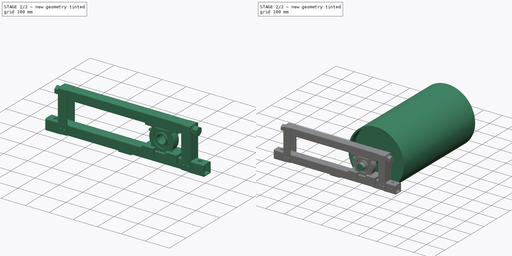
[diagram: build sequence overview — one tinted view per stage of 2, left to right]
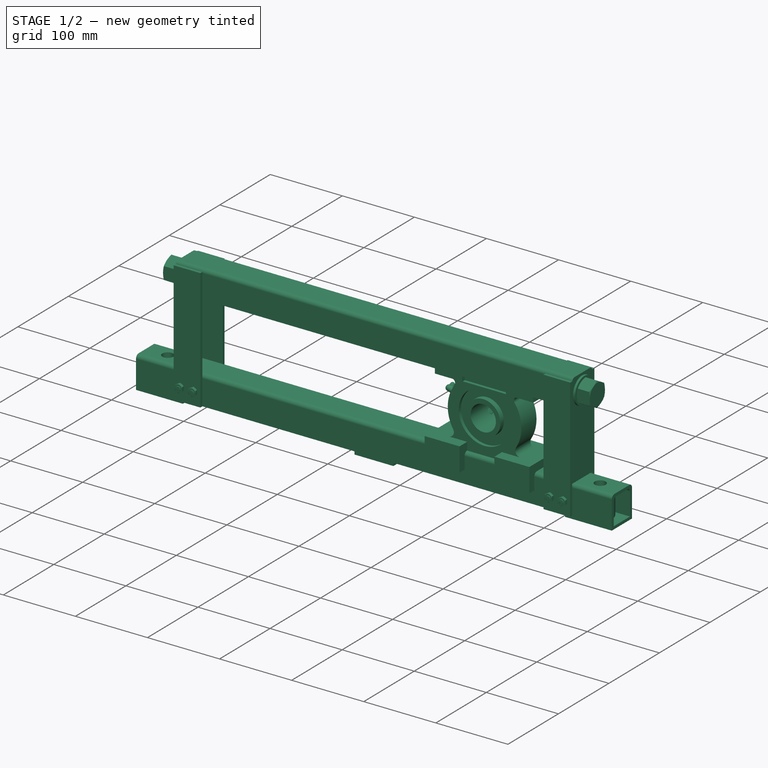
[diagram: stage 1 of 2 — iso view after this stage's code; geometry added in this stage tinted green]
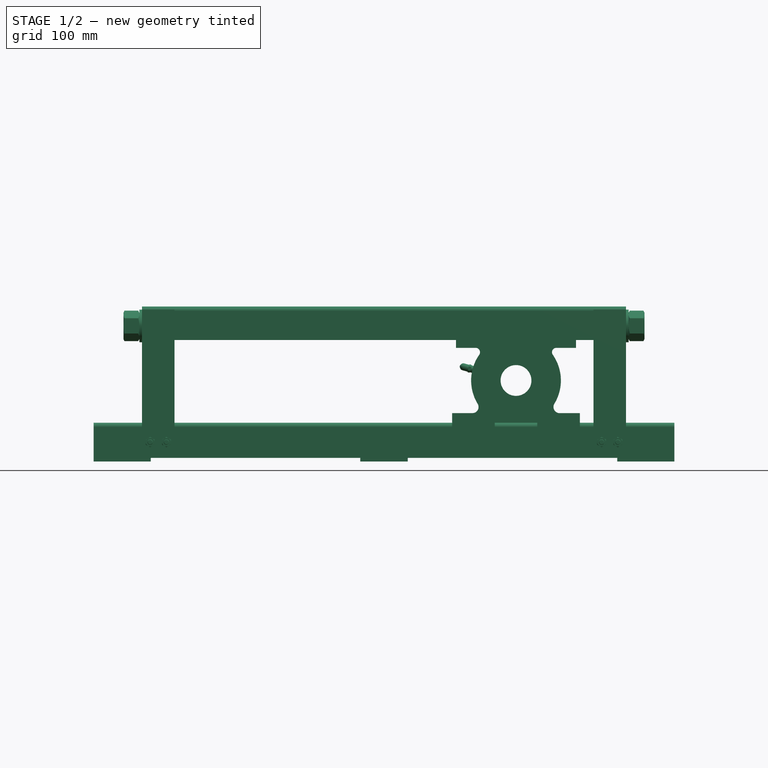
[diagram: stage 1 of 2 — front view after this stage's code; geometry added in this stage tinted green]
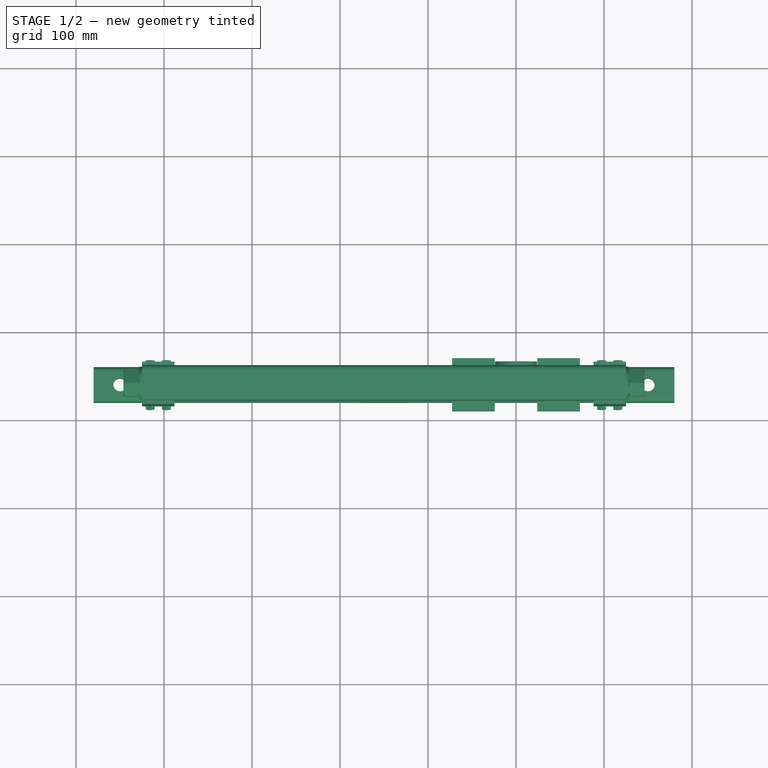
[diagram: stage 1 of 2 — top view after this stage's code; geometry added in this stage tinted green]
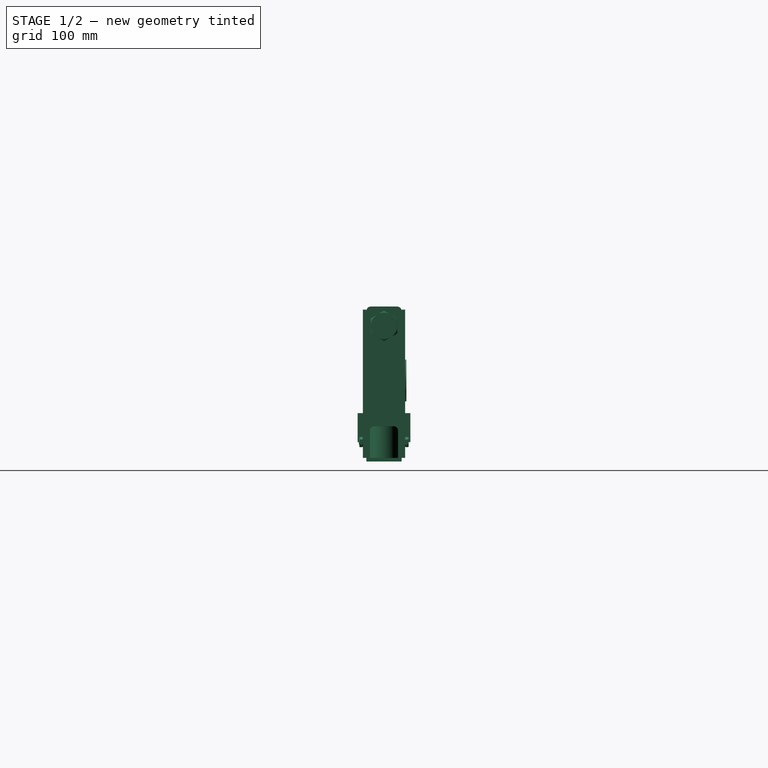
[diagram: stage 1 of 2 — right view after this stage's code; geometry added in this stage tinted green]
FCSTD DOCUMENT  (FreeCAD 1.0R39319 (Git))
Label: Take-Up_25Assy
License: All rights reserved
LicenseURL: https://en.wikipedia.org/wiki/All_rights_reserved
objects: Part::Feature×3, App::Part×3, Sketcher::SketchObject×1, Spreadsheet::Sheet×1, Part::FeaturePython×1, Part::Mirroring×1
note: 7 computed .brp shape members not serialized (recipe doc carries the construction recipe); baked Part::Feature solids carry a one-line shape summary decoded from their .brp

FEATURE [Part::Feature] Part__Feature  label="UCT207-Nipple"
  Placement = pos=(398.691,105.2,-1.6e-14) rot=(0.519988,-0.677661,0.519988;1.95044rad)
  shape: bbox 18.99 x 12.27 x 15.73 mm, 44 faces (baked)
FEATURE [Part::Feature] Part__Feature001  label="UCT207-Housing2"
  Placement = pos=(450,92,0) rot=(0,0,1;0rad)
  shape: bbox 145.2 x 150 x 60 mm, 86 faces (baked)
FEATURE [Part::Feature] Part__Feature002  label="UCTL207-300-Frame"
  Placement = pos=(300,92,0) rot=(0,0,1;0rad)
  shape: bbox 660 x 176 x 56.5 mm, 312 faces (baked)
FEATURE [App::Part] UCTL207J_300_0  label="UCTL207J-300-0"
  Group = -> [Part__Feature,Part__Feature001,Part__Feature002]
  Origin = -> Origin
FEATURE [App::Part] _______________________________35_v1  label="Take-Up_35"
  Group = -> [UCTL207J_300_0]
  Origin = -> Origin001
  Placement = pos=(-450,360,-92) rot=(1,0,0;1.5708rad)
  expr: .Placement.Base.y = Spreadsheet.Y
FEATURE [Part::Mirroring] Mirror  label="Take-Up_35 (mirrored)"
  Base = (-500,0,0)
  Normal = (0,-1,0)
  Source = -> _______________________________35_v1
FEATURE [App::Part] Part  label="takeUpAssy25"
  Group = -> [Sketch,Spreadsheet,Take_upPulley,_______________________________35_v1,Mirror]
  JPN = テークアップアセンブリ
  Origin = -> Origin002
  count = 1
  mass = 77.1098
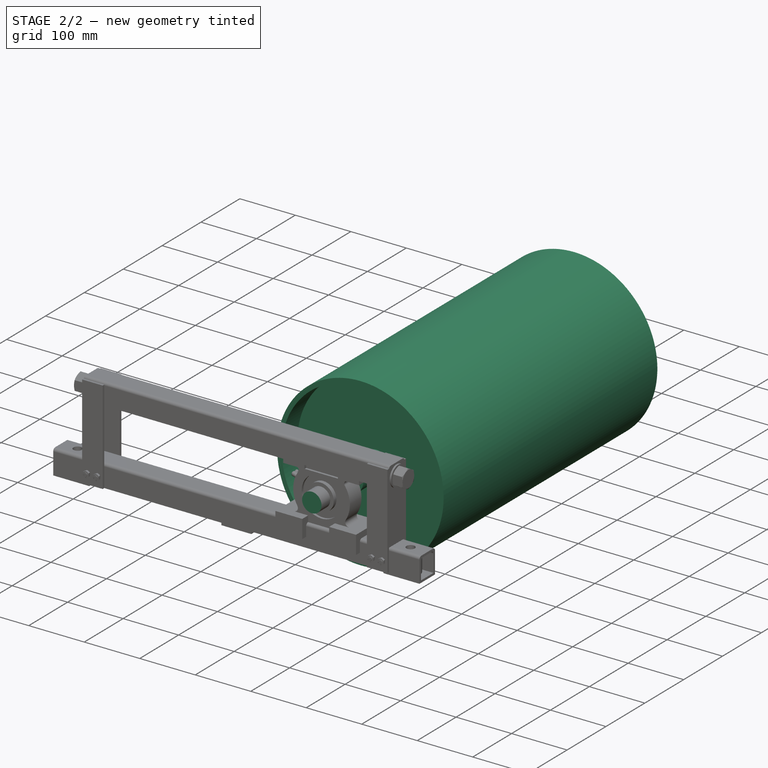
[diagram: stage 2 of 2 — iso view after this stage's code; geometry added in this stage tinted green]
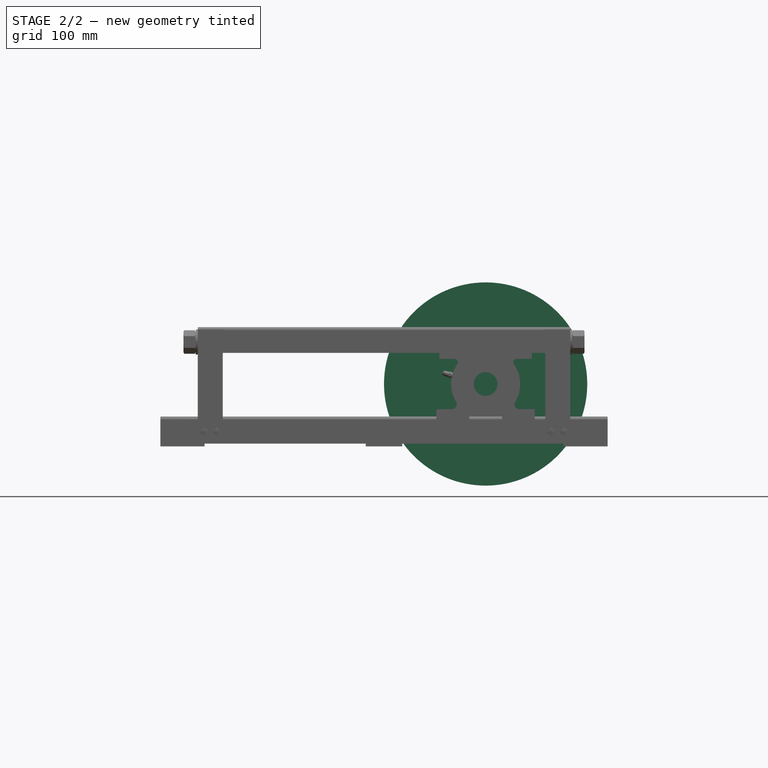
[diagram: stage 2 of 2 — front view after this stage's code; geometry added in this stage tinted green]
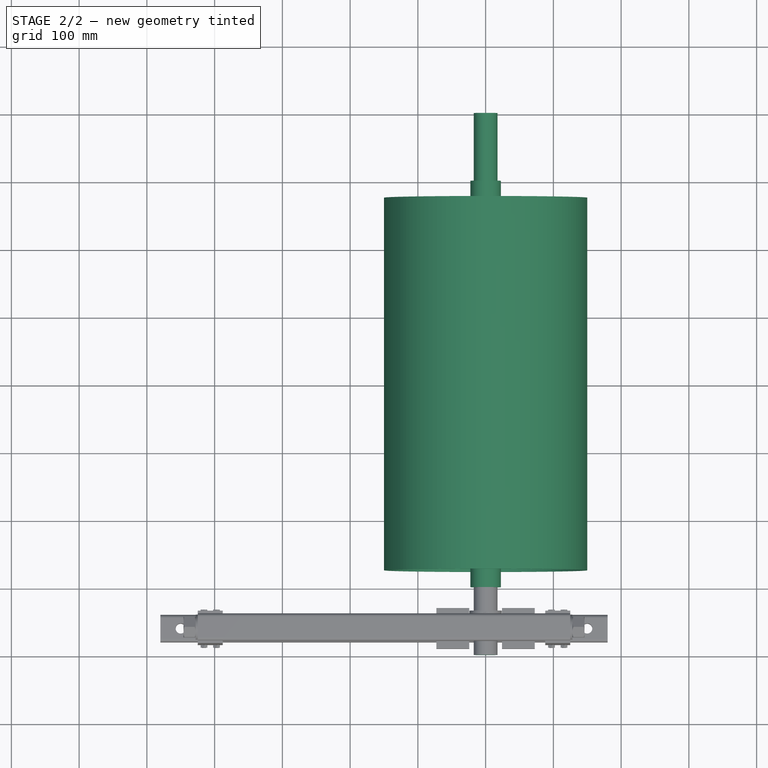
[diagram: stage 2 of 2 — top view after this stage's code; geometry added in this stage tinted green]
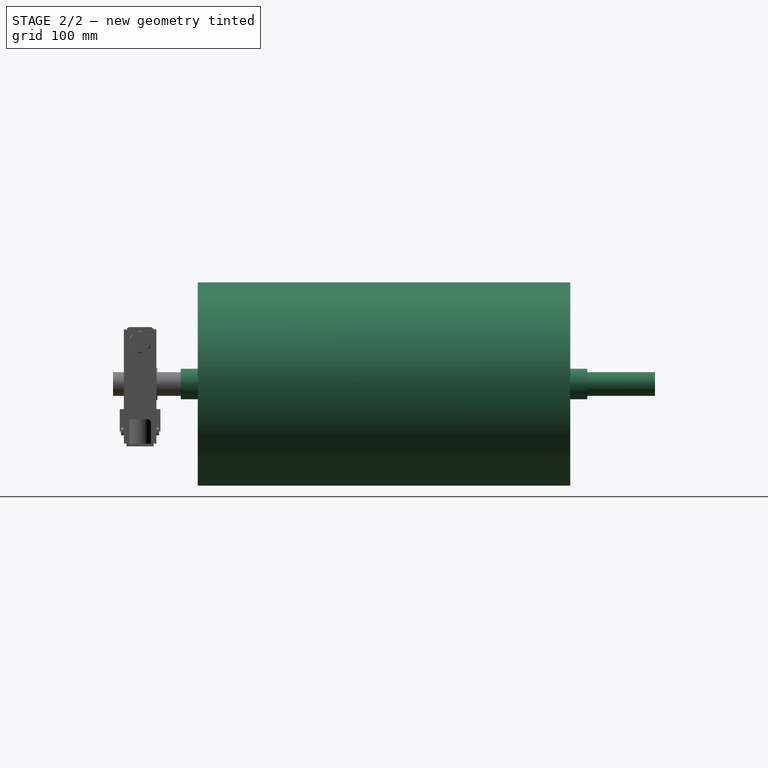
[diagram: stage 2 of 2 — right view after this stage's code; geometry added in this stage tinted green]
FEATURE [Sketcher::SketchObject] Sketch
  ArcFitTolerance = 0
  FullyConstrained = true
  MakeInternals = false
  sketch-geometry (10):
    g0: LineSegment StartX=-600 StartY=-625 StartZ=0 EndX=-600 EndY=625 EndZ=0
    g1: LineSegment StartX=-600 StartY=625 StartZ=0 EndX=600 EndY=625 EndZ=0
    g2: LineSegment StartX=600 StartY=625 StartZ=0 EndX=600 EndY=-625 EndZ=0
    g3: LineSegment StartX=600 StartY=-625 StartZ=0 EndX=-600 EndY=-625 EndZ=0
    g4: GeomPoint [constr] X=0 Y=0 Z=0
    g5: LineSegment StartX=-525 StartY=-550 StartZ=0 EndX=-525 EndY=550 EndZ=0
    g6: LineSegment StartX=-525 StartY=550 StartZ=0 EndX=525 EndY=550 EndZ=0
    g7: LineSegment StartX=525 StartY=550 StartZ=0 EndX=525 EndY=-550 EndZ=0
    g8: LineSegment StartX=525 StartY=-550 StartZ=0 EndX=-525 EndY=-550 EndZ=0
    g9: GeomPoint [constr] X=0 Y=0 Z=0
  constraints (24):
    c: Coincident(g0,g1)
    c: Coincident(g1,g2)
    c: Coincident(g2,g3)
    c: Coincident(g3,g0)
    c: Horizontal(g1)
    c: Horizontal(g3)
    c: Vertical(g0)
    c: Vertical(g2)
    c: Symmetric(g1,g0,g4)
    c: Coincident(g4,g-1)
    c: Distance(g0) = 1250
    c: Distance(g4,g0) = 600
    c: Coincident(g5,g6)
    c: Coincident(g6,g7)
    c: Coincident(g7,g8)
    c: Coincident(g8,g5)
    c: Horizontal(g6)
    c: Horizontal(g8)
    c: Vertical(g5)
    c: Vertical(g7)
    c: Symmetric(g6,g5,g9)
    c: Coincident(g9,g4)
    c: Distance(g5,g0) = 75
    c: Distance(g5,g1) = 75
FEATURE [Spreadsheet::Sheet] Spreadsheet  label="Spreadsheet_takeup"
  cells = A1='beltWidth; B1='takeup d0; C1='d1=d0+10; D1='pulley D0; E1='puller L0; F1='puller C0; G1='puller B0; H1='takeup Y; A2(W0)=500; B2(d0)=25; C2(d1)==d0 + 10; D2(D0)=300; E2(L0)=550; F2(C0)=768; G2(B0)=50; H2(Y)=360; A3=400; B3=20; C3==d0 + 10; D3=300; E3=450; F3=568; G3=50; H3=310; A4=450; B4=20; C4==d0 + 10; D4=300; E4=500; F4=618; G4=50; H4=335; A5=500; B5=20; C5==d0 + 10; D5=300; E5=550; F5=668; G5=50; H5=360; A6=600; B6=20; C6==d0 + 10; D6=300; E6=650; F6=768; G6=50; H6=410; A7=700; B7=20; C7==d0 + 10; D7=300; E7=750; F7=868; G7=50; H7=460; A8=750; B8=20; C8==d0 + 10; D8=300; E8=800; F8=918; G8=50; H8=485; A9=800; B9=20; C9==d0 + 10; D9=300; E9=850; F9=968; G9=50; H9=510; A10=900; B10=20; C10==d0 + 10; D10=300; E10=950; F10=1068; G10=50; H10=560; A11=1000; B11=20; C11==d0 + 10; D11=300; E11=1050; F11=1168; G11=50; H11=610
FEATURE [Part::FeaturePython] Take_upPulley  # WARN: FeaturePython — macro-defined, semantics opaque (R4)
  BeltWidth = 2
  D = 300
  E = 0
  L = 550
  Placement = pos=(0,0,0) rot=(0,0,1;1.5708rad)
  d1 = 45
  d2 = 35
  d3 = 25
  expr: D = Spreadsheet.D0
  expr: L = Spreadsheet.L0
  expr: d1 = d2 + 10
  expr: d2 = d3 + 10
  expr: d3 = Spreadsheet.d0
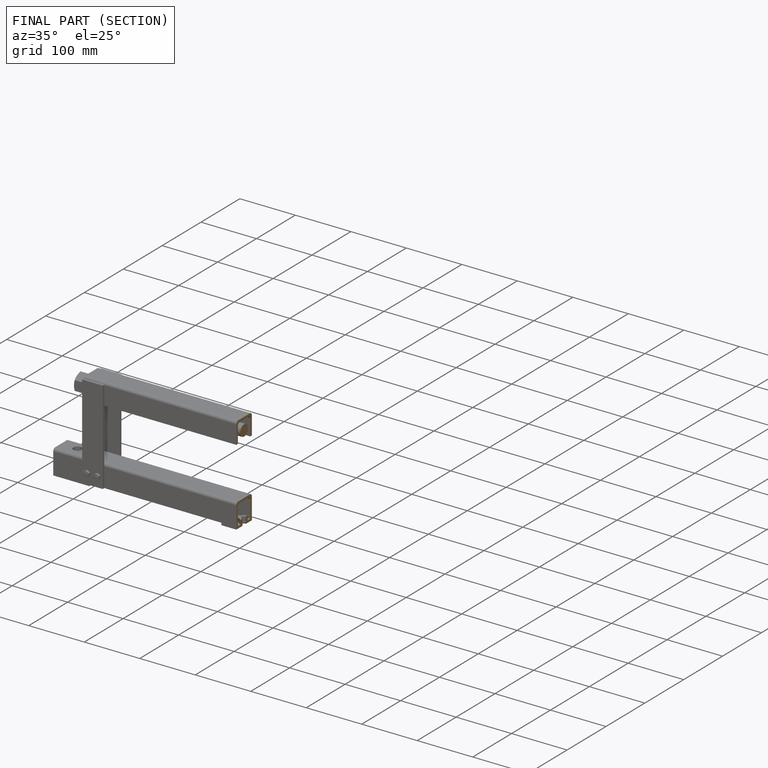
[diagram: finished part — half-section view (interior)]
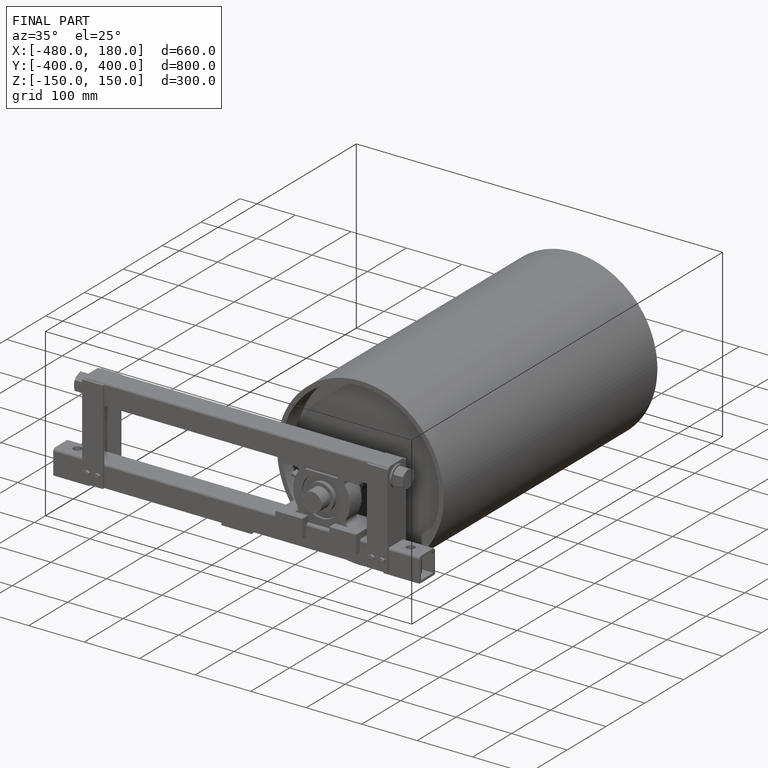
[diagram: finished part — iso view with bounding-box wireframe]
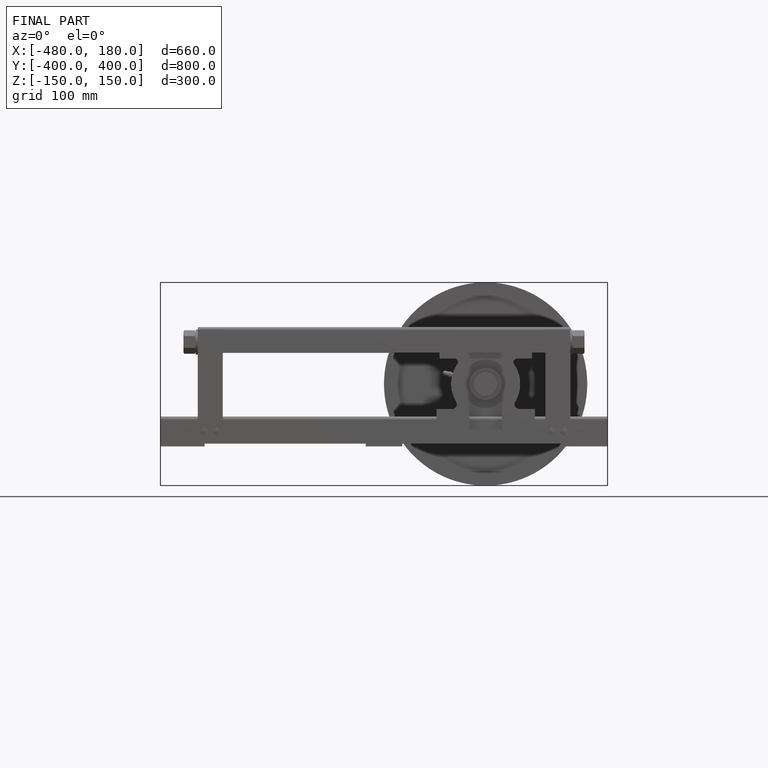
[diagram: finished part — front view with bounding-box wireframe]
